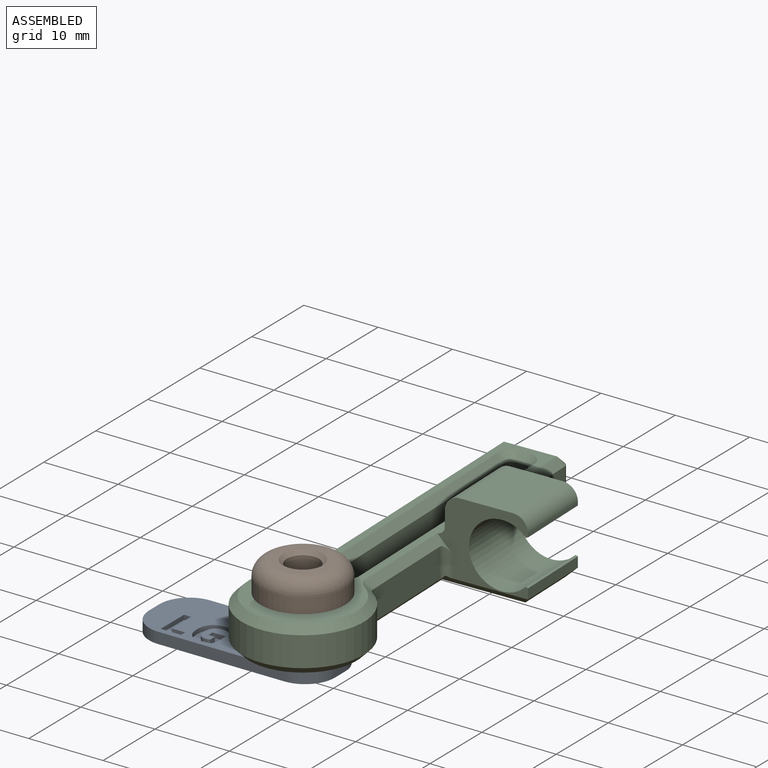
[diagram: assembled view]
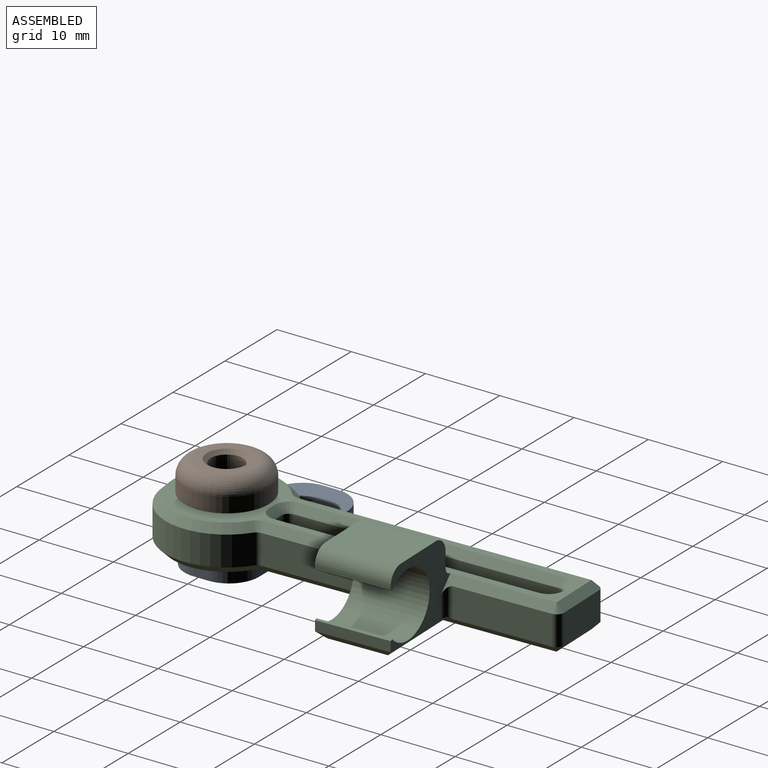
[diagram: assembled view, second angle]
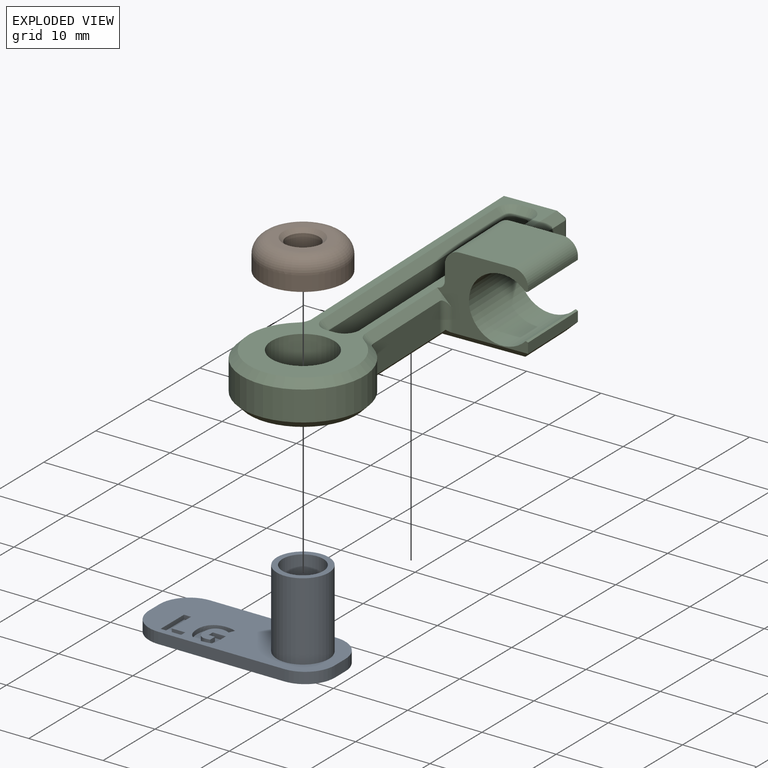
[diagram: exploded view]
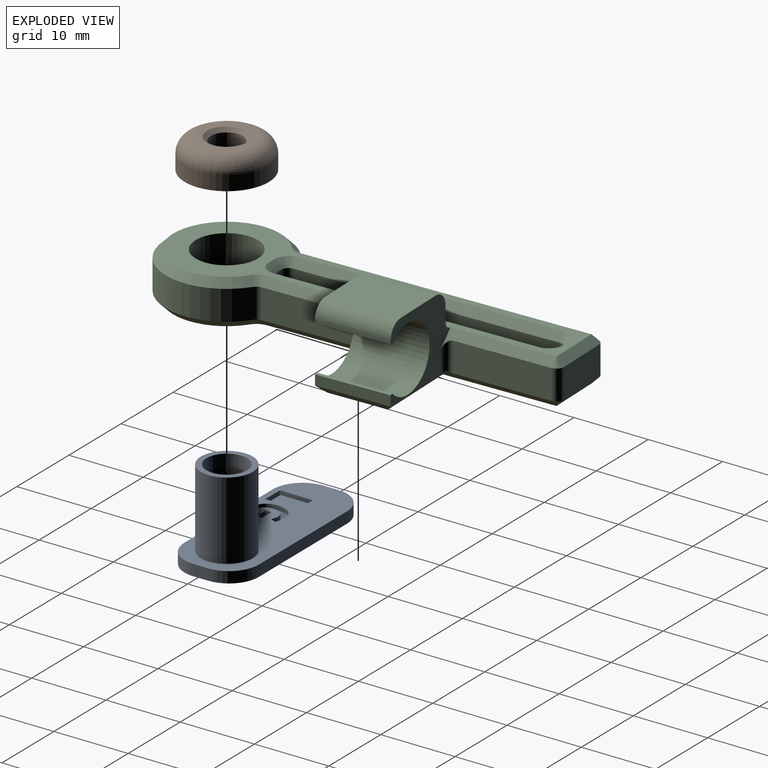
[diagram: exploded view, second angle]
ASSEMBLY  parts=3 mates=2
PART A: 40 faces, bbox 25x10x12 mm
  f0: plane 25x10mm, normal (0,0,1), area 182.3mm2, adj f1,f2,f3,f4,f5,f6,f7,f8
  f1: cylinder r=4mm len=4mm, axis (0,0,-1), area 9.4mm2, adj f0,f2,f8,f9
  f2: plane 17x1.5mm, normal (0,1,0), area 25.5mm2, adj f0,f1,f3,f9
  f3: cylinder r=4mm len=4mm, axis (0,0,-1), area 9.4mm2, adj f0,f2,f4,f9
  f4: plane 2x1.5mm, normal (-1,0,0), area 3mm2, adj f0,f3,f5,f9
  f5: cylinder r=4mm len=4mm, axis (0,0,-1), area 9.4mm2, adj f0,f4,f6,f9
  f6: plane 17x1.5mm, normal (0,-1,0), area 25.5mm2, adj f0,f5,f7,f9
  f7: cylinder r=4mm len=4mm, axis (0,0,-1), area 9.4mm2, adj f0,f6,f8,f9
  f8: plane 2x1.5mm, normal (1,0,0), area 3mm2, adj f0,f1,f7,f9
  f9: plane 25x10mm, normal (0,0,-1), area 212.5mm2, adj f1,f2,f3,f4,f5,f6,f7,f8
  f10: cylinder r=3.5mm len=10.5mm, axis (0,0,-1), area 230.9mm2, adj f0,f11
  f11: plane 7x7mm, normal (0,0,1), area 14.7mm2, adj f10,f12
  f12: cylinder r=2.75mm len=12mm, axis (0,0,1), area 207.3mm2, adj f9,f11
  f13: plane 0.79x0.6mm, normal (1,0,0), area 0.5mm2, adj f0,f14,f31,f32
  f14: plane 0.85x0.6mm, normal (0,1,0), area 0.5mm2, adj f0,f13,f15,f32
  f15: plane 0.94x0.6mm, normal (1,0,0), area 0.6mm2, adj f0,f14,f16,f32
  f16: extruded ~0.6x0.6mm, area 0.4mm2, adj f0,f15,f17,f32
  f17: extruded ~0.87x0.6mm, area 0.6mm2, adj f0,f16,f18,f32
  f18: extruded ~1.11x0.6mm, area 0.7mm2, adj f0,f17,f19,f32
  f19: extruded ~1.11x0.6mm, area 0.7mm2, adj f0,f18,f20,f32
  f20: extruded ~0.99x0.6mm, area 0.7mm2, adj f0,f19,f21,f32
  f21: extruded ~1.02x0.6mm, area 0.6mm2, adj f0,f20,f22,f32
  f22: plane 0.76x0.6mm, normal (-0.92,0.38,0), area 0.5mm2, adj f0,f21,f23,f32
  f23: extruded ~1.33x0.6mm, area 0.8mm2, adj f0,f22,f24,f32
  f24: extruded ~1.72x0.61mm, area 1.1mm2, adj f0,f23,f25,f32
  f25: extruded ~1.69x0.62mm, area 1.1mm2, adj f0,f24,f26,f32
  f26: extruded ~1.71x0.6mm, area 1.1mm2, adj f0,f25,f27,f32
  f27: extruded ~1.55x0.6mm, area 1mm2, adj f0,f26,f28,f32
  f28: extruded ~0.78x0.6mm, area 0.5mm2, adj f0,f27,f29,f32
  f29: extruded ~0.81x0.6mm, area 0.5mm2, adj f0,f28,f30,f32
  f30: plane 2.32x0.6mm, normal (-1,0,0), area 1.4mm2, adj f0,f29,f31,f32
  f31: plane 1.78x0.6mm, normal (0,-1,0), area 1.1mm2, adj f0,f13,f30,f32
  f32: plane 4.61x3.68mm, normal (0,0,1), area 9.8mm2, adj f13,f14,f15,f16,f17,f18,f19,f20
  f33: plane 2.77x0.6mm, normal (0,1,0), area 1.7mm2, adj f0,f34,f38,f39
  f34: plane 0.79x0.6mm, normal (-1,0,0), area 0.5mm2, adj f0,f33,f35,f39
  f35: plane 1.82x0.6mm, normal (0,-1,0), area 1.1mm2, adj f0,f34,f36,f39
  f36: plane 3.7x0.6mm, normal (-1,0,0), area 2.2mm2, adj f0,f35,f37,f39
  f37: plane 0.95x0.6mm, normal (0,-1,0), area 0.6mm2, adj f0,f36,f38,f39
  f38: plane 4.48x0.6mm, normal (1,0,0), area 2.7mm2, adj f0,f33,f37,f39
  f39: plane 4.48x2.77mm, normal (0,0,1), area 5.7mm2, adj f33,f34,f35,f36,f37,f38
PART B: 11 faces, bbox 12.3x12.3x4 mm
  f0: plane 7.6x7.6mm, normal (0,0,-1), area 22.9mm2, adj f1,f3
  f1: cylinder r=2.67mm len=5.35mm, axis (0,0,1), area 50.4mm2, adj f0,f2
  f2: plane 5.35x5.35mm, normal (0,0,-1), area 7.6mm2, adj f1,f7
  f3: cylinder r=3.8mm len=7.6mm, axis (0,0,1), area 59.7mm2, adj f0,f8
  f4: plane 11.35x11.35mm, normal (0,0,-1), area 43.1mm2, adj f6,f8
  f5: plane 7.35x7.35mm, normal (0,0,1), area 19.9mm2, adj f9,f10
  f6: cylinder r=5.68mm len=11.35mm, axis (0,0,-1), area 71.3mm2, adj f4,f9
  f7: cylinder r=2.17mm len=4.35mm, axis (0,0,1), area 47.8mm2, adj f2,f10
  f8: cone r=4.3mm half-angle=45deg, axis (0,0,-1), area 18mm2, adj f3,f4
  f9: torus R=3.67mm, axis (0,0,1), area 97.7mm2, adj f5,f6
  f10: cone r=2.17mm half-angle=45deg, axis (0,0,1), area 10.8mm2, adj f5,f7
PART C: 72 faces, bbox 23.6x55x11 mm
  f0: plane 10x0.44mm, normal (1,0,0), area 4.4mm2, adj f1,f23,f68,f71
  f1: plane 12x10mm, normal (0,1,0), area 49.1mm2, adj f0,f22,f24,f25,f34,f48,f65,f66
  f2: plane 13.32x4mm, normal (1,0,0), area 53.3mm2, adj f12,f26,f54,f64
  f3: cylinder r=1mm len=4mm, axis (0,0,-1), area 6.3mm2, adj f4,f19,f41,f55
  f4: plane 35x4mm, normal (-1,0,0), area 140mm2, adj f3,f5,f39,f57
  f5: cylinder r=1mm len=4mm, axis (0,0,-1), area 6.3mm2, adj f4,f6,f37,f59
  f6: plane 4x1mm, normal (0,1,0), area 4mm2, adj f5,f7,f35,f61
  f7: cylinder r=1mm len=4mm, axis (0,0,-1), area 6.3mm2, adj f6,f8,f36,f62
  f8: plane 35x4mm, normal (1,0,0), area 140mm2, adj f7,f9,f38,f60
  f9: cylinder r=1mm len=4mm, axis (0,0,-1), area 6.3mm2, adj f8,f19,f40,f58
  f10: cylinder r=1mm len=4mm, axis (0,0,-1), area 3.7mm2, adj f11,f17,f29,f49
  f11: cylinder r=8.2mm len=16.4mm, axis (0,0,-1), area 164mm2, adj f10,f12,f28,f51
  f12: cylinder r=1mm len=4mm, axis (0,0,-1), area 3.8mm2, adj f2,f11,f27,f53
  f13: plane 13x4mm, normal (1,0,0), area 52mm2, adj f14,f34,f46,f65
  f14: cylinder r=1mm len=4mm, axis (0,0,-1), area 6.3mm2, adj f13,f15,f33,f44
  f15: plane 7x4mm, normal (0,1,0), area 28mm2, adj f14,f16,f32,f43
  f16: cylinder r=1mm len=4mm, axis (0,0,-1), area 6.3mm2, adj f15,f17,f31,f45
  f17: plane 38.49x4mm, normal (-1,0,0), area 154mm2, adj f10,f16,f30,f47
  f18: cylinder r=4.2mm len=8.4mm, axis (0,0,-1), area 131.9mm2, adj f20,f63
  f19: plane 4x1mm, normal (0,-1,0), area 4mm2, adj f3,f9,f42,f56
  f20: plane 52.98x14.4mm, normal (0,0,1), area 188.3mm2, adj f18,f26,f27,f28,f29,f30,f32,f34
  f21: plane 52.98x21.58mm, normal (0,0,-1), area 246.8mm2, adj f43,f46,f47,f48,f49,f50,f51,f52
  f22: plane 10x2mm, normal (-1,0,0), area 20mm2, adj f1,f23,f66,f67
  f23: plane 12x10mm, normal (0,-1,0), area 49.1mm2, adj f0,f22,f24,f25,f26,f52,f64,f66
  f24: plane 10x7mm, normal (0,0,1), area 70mm2, adj f1,f23,f67,f68
  f25: plane 10x1.36mm, normal (1,0,0), area 13.6mm2, adj f1,f23,f50,f70
  f26: plane 14.32x2mm, normal (0.71,0,0.71), area 20.5mm2, adj f2,f20,f23,f27,f64
  f27: cone r=1mm half-angle=45deg, axis (0,0,1), area 2mm2, adj f12,f20,f26,f28
  f28: cone r=7.2mm half-angle=45deg, axis (0,0,-1), area 54.5mm2, adj f11,f20,f27,f29
  f29: cone r=1mm half-angle=45deg, axis (0,0,1), area 1.9mm2, adj f10,f20,f28,f30
  f30: plane 38.49x1mm, normal (-0.71,0,0.71), area 54.4mm2, adj f17,f20,f29,f31
  f31: cone r=1mm half-angle=45deg, axis (0,0,-1), area 1.1mm2, adj f16,f30,f32
  f32: plane 7x1mm, normal (0,0.71,0.71), area 9.9mm2, adj f15,f20,f31,f33
  f33: cone r=1mm half-angle=45deg, axis (0,0,-1), area 1.1mm2, adj f14,f32,f34
  f34: plane 14x2mm, normal (0.71,0,0.71), area 20.1mm2, adj f1,f13,f20,f33,f65
  f35: plane 1x1mm, normal (0,0.71,0.71), area 1.4mm2, adj f6,f20,f36,f37
  f36: cone r=1mm half-angle=45deg, axis (0,0,1), area 3.3mm2, adj f7,f20,f35,f38
  f37: cone r=1mm half-angle=45deg, axis (0,0,1), area 3.3mm2, adj f5,f20,f35,f39
  f38: plane 35x1mm, normal (0.71,0,0.71), area 49.5mm2, adj f8,f20,f36,f40
  f39: plane 35x1mm, normal (-0.71,0,0.71), area 49.5mm2, adj f4,f20,f37,f41
  f40: cone r=1mm half-angle=45deg, axis (0,0,1), area 3.3mm2, adj f9,f20,f38,f42
  f41: cone r=1mm half-angle=45deg, axis (0,0,1), area 3.3mm2, adj f3,f20,f39,f42
  f42: plane 1x1mm, normal (0,-0.71,0.71), area 1.4mm2, adj f19,f20,f40,f41
  f43: plane 7x1mm, normal (0,0.71,-0.71), area 9.9mm2, adj f15,f21,f44,f45
  f44: cone r=1mm half-angle=45deg, axis (0,0,1), area 1.1mm2, adj f14,f43,f46
  f45: cone r=1mm half-angle=45deg, axis (0,0,1), area 1.1mm2, adj f16,f43,f47
  f46: plane 15x1.29mm, normal (0.71,0,-0.71), area 20.7mm2, adj f13,f21,f44,f48,f65
  f47: plane 38.49x1mm, normal (-0.71,0,-0.71), area 54.4mm2, adj f17,f21,f45,f49
  f48: plane 12x1.29mm, normal (0,0.71,-0.71), area 15.7mm2, adj f1,f21,f46,f50,f65
  f49: cone r=2mm half-angle=45deg, axis (0,0,-1), area 1.9mm2, adj f10,f21,f47,f51
  f50: plane 10x1mm, normal (0.71,0,-0.71), area 12.7mm2, adj f21,f25,f48,f52
  f51: cone r=8.2mm half-angle=45deg, axis (0,0,1), area 54.5mm2, adj f11,f21,f49,f53
  f52: plane 12x1.29mm, normal (0,-0.71,-0.71), area 15.7mm2, adj f21,f23,f50,f54,f64
  f53: cone r=2mm half-angle=45deg, axis (0,0,-1), area 2mm2, adj f12,f21,f51,f54
  f54: plane 15.32x1.29mm, normal (0.71,0,-0.71), area 21.1mm2, adj f2,f21,f52,f53,f64
  f55: cone r=2mm half-angle=45deg, axis (0,0,-1), area 3.3mm2, adj f3,f21,f56,f57
  f56: plane 1x1mm, normal (0,-0.71,-0.71), area 1.4mm2, adj f19,f21,f55,f58
  f57: plane 35x1mm, normal (-0.71,0,-0.71), area 49.5mm2, adj f4,f21,f55,f59
  f58: cone r=2mm half-angle=45deg, axis (0,0,-1), area 3.3mm2, adj f9,f21,f56,f60
  f59: cone r=2mm half-angle=45deg, axis (0,0,-1), area 3.3mm2, adj f5,f21,f57,f61
  f60: plane 35x1mm, normal (0.71,0,-0.71), area 49.5mm2, adj f8,f21,f58,f62
  f61: plane 1x1mm, normal (0,0.71,-0.71), area 1.4mm2, adj f6,f21,f59,f62
  f62: cone r=2mm half-angle=45deg, axis (0,0,-1), area 3.3mm2, adj f7,f21,f60,f61
  f63: cone r=5.2mm half-angle=45deg, axis (0,0,-1), area 41.8mm2, adj f18,f21
  f64: cylinder r=1mm len=4mm, axis (0,0,-1), area 5.6mm2, adj f2,f23,f26,f52,f54
  f65: cylinder r=1mm len=4mm, axis (0,0,1), area 5.6mm2, adj f1,f13,f34,f46,f48
  f66: cylinder r=1mm len=10mm, axis (0,-1,0), area 15.7mm2, adj f1,f20,f22,f23
  f67: cylinder r=2mm len=10mm, axis (0,-1,0), area 31.4mm2, adj f1,f22,f23,f24
  f68: cylinder r=2mm len=10mm, axis (0,1,0), area 31.4mm2, adj f0,f1,f23,f24
  f69: cylinder r=4.35mm len=10mm, axis (0,1,0), area 207.6mm2, adj f1,f23,f70,f71
  f70: plane 10x0.29mm, normal (0.37,0,0.93), area 3.1mm2, adj f1,f23,f25,f69
  f71: plane 10x0.29mm, normal (0.37,0,-0.93), area 3.1mm2, adj f0,f1,f23,f69
PLACE A t=(9.77,-13.39,7.72)mm fixed
PLACE B t=(9.77,-13.39,7.38)mm
PLACE C rot(axis=(0,0,1),1.6deg) t=(9.91,-13.24,7.97)mm
MATE revolute C.f11 <-> A.f10  axis (0,0,-1) through (4.77,-8.39,15.97)mm
MATE slider B.f1 <-> A.f10  axis (0,0,1) through (4.77,-8.39,18.13)mm
